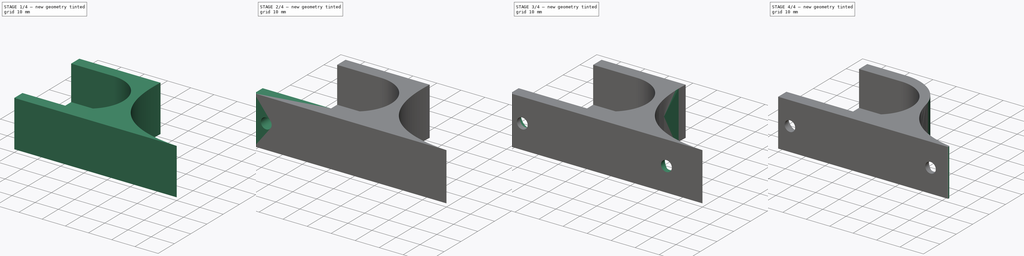
[diagram: build sequence overview — one tinted view per stage of 4, left to right]
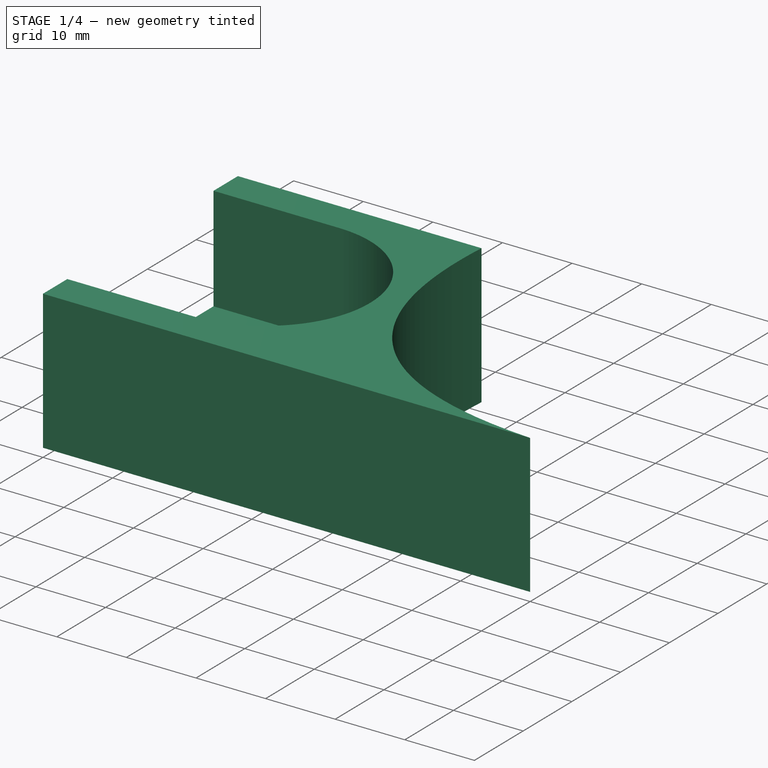
[diagram: stage 1 of 4 — iso view after this stage's code; geometry added in this stage tinted green]
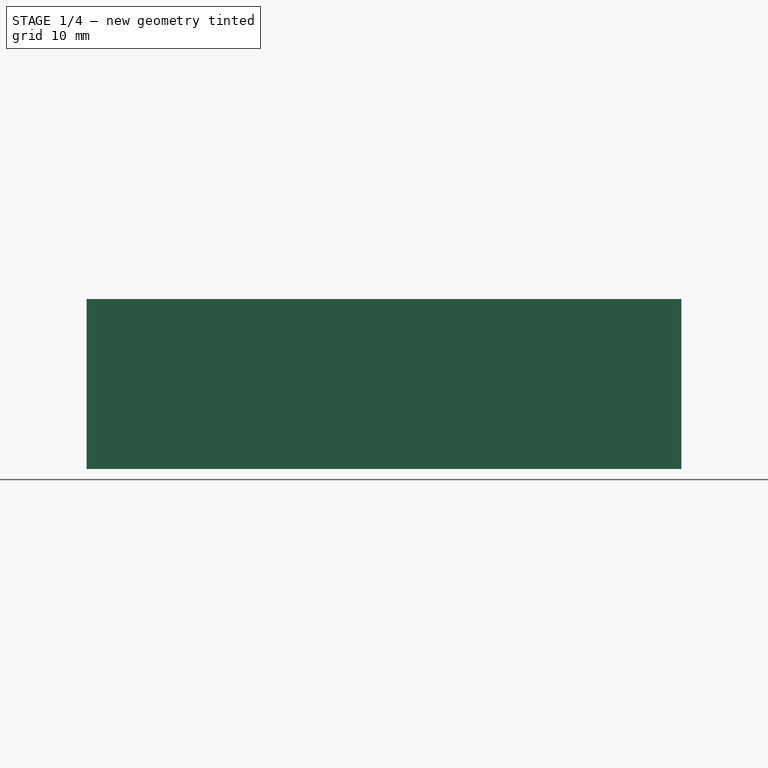
[diagram: stage 1 of 4 — front view after this stage's code; geometry added in this stage tinted green]
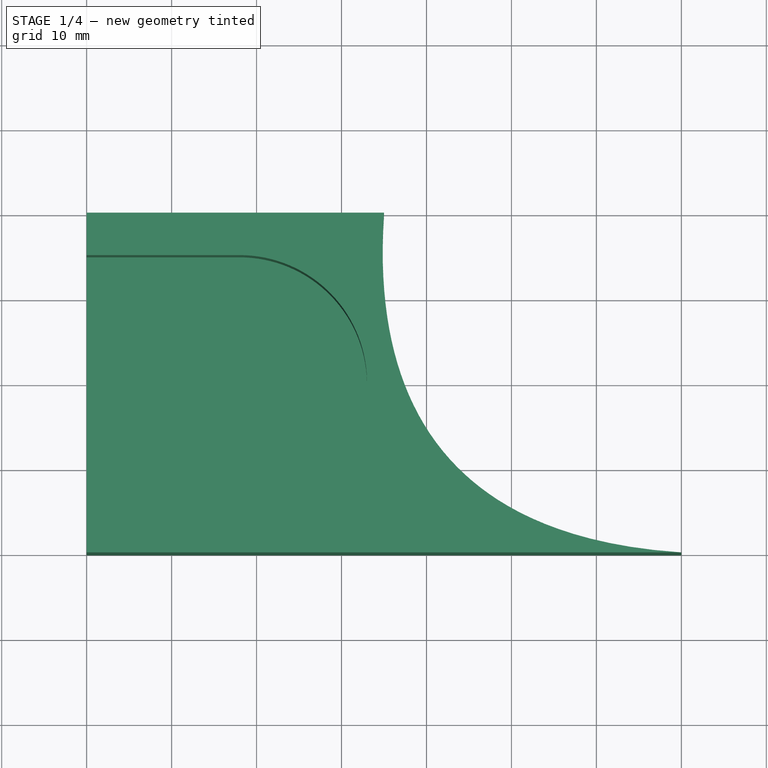
[diagram: stage 1 of 4 — top view after this stage's code; geometry added in this stage tinted green]
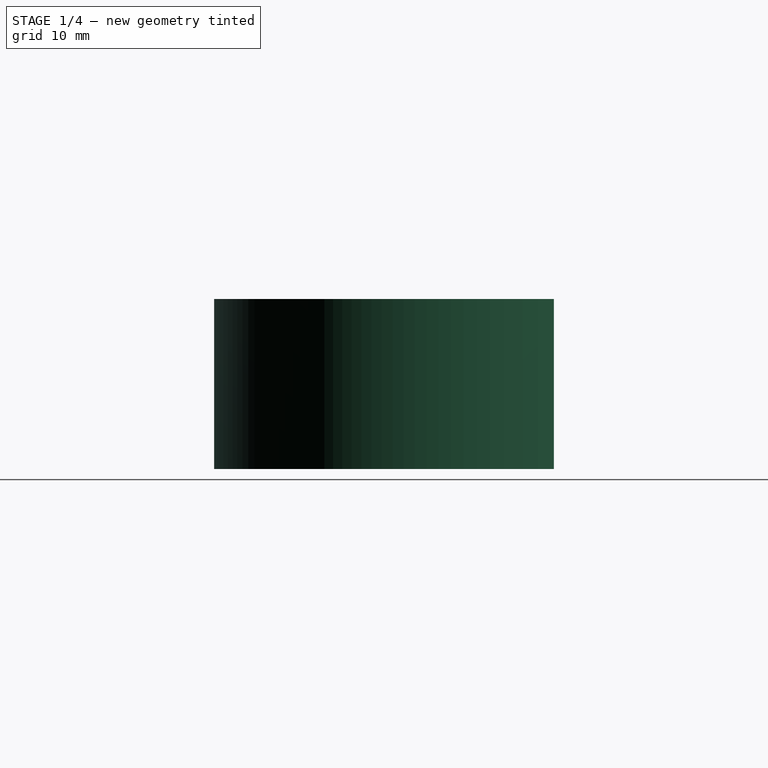
[diagram: stage 1 of 4 — right view after this stage's code; geometry added in this stage tinted green]
FCSTD DOCUMENT  (FreeCAD 0.19R24267 +99 (Git))
Label: curtainFrame
License: All rights reserved
LicenseURL: http://en.wikipedia.org/wiki/All_rights_reserved
objects: Sketcher::SketchObject×2, PartDesign::SubtractiveCylinder×2, PartDesign::LinearPattern×2, PartDesign::Fillet×2, PartDesign::Pad×1, PartDesign::Pocket×1, PartDesign::AdditiveBox×1, PartDesign::Line×1, PartDesign::Body×1
note: 20 computed .brp shape members not serialized (recipe doc carries the construction recipe); baked Part::Feature solids carry a one-line shape summary decoded from their .brp

FEATURE [Sketcher::SketchObject] Sketch
  FullyConstrained = true
  MapMode = 5
  Support = -> [XY_Plane]
  expr: Constraints[17] = .Constraints.width / 2
  sketch-geometry (7):
    g0: LineSegment StartX=0 StartY=0 StartZ=0 EndX=70 EndY=0 EndZ=0
    g1: LineSegment StartX=0 StartY=0 StartZ=0 EndX=0 EndY=40 EndZ=0
    g2: LineSegment StartX=0 StartY=40 StartZ=0 EndX=35 EndY=40 EndZ=0
    g3: LineSegment StartX=35 StartY=40 StartZ=0 EndX=70 EndY=0 EndZ=0
    g4: ArcOfParabola CenterX=42.5 CenterY=11.25 CenterZ=0 NormalX=0 NormalY=0 NormalZ=1 Focal=13.2877 AngleXU=0.71883 StartAngle=-26.5754 EndAngle=26.5754
    g5: GeomPoint X=52.5 Y=20 Z=0
    g6: LineSegment StartX=42.5 StartY=11.25 StartZ=0 EndX=52.5 EndY=20 EndZ=0
  constraints (18):
    c: Coincident(g0,g-1)
    c: PointOnObject(g0,g-1)
    c: Coincident(g1,g0)
    c: PointOnObject(g1,g-2)
    c: Distance(g0) = 70  'length'
    c: Coincident(g2,g1)
    c: Horizontal(g2)
    c: Coincident(g3,g2)
    c: Coincident(g3,g0)
    c: Distance(g1) = 40  'width'
    c: Distance(g2) = 35
    c: InternalAlignment(g5,g4)
    c: Coincident(g5,g6)
    c: Coincident(g4,g6)
    c: PointOnObject(g5,g3)
    c: Coincident(g4,g2)
    c: Coincident(g4,g0)
    c: Distance(g5,g0) = 20
FEATURE [PartDesign::Pad] Pad
  Direction = (1,1,1)
  Length = 20
  Length2 = 100
  Profile = -> Sketch
  Refine = true
  Type = 0
FEATURE [Sketcher::SketchObject] Sketch001
  FullyConstrained = true
  MapMode = 5
  Placement = pos=(0,0,20) rot=(0,0,1;0rad)
  Support = -> [Pad]
  expr: Constraints[12] = .Constraints.tubeDiameter / 2 + 3mm
  sketch-geometry (5):
    g0: LineSegment StartX=0 StartY=0 StartZ=0 EndX=0 EndY=5 EndZ=0
    g1: LineSegment StartX=0 StartY=5 StartZ=0 EndX=18 EndY=5 EndZ=0
    g2: LineSegment StartX=18 StartY=35 StartZ=0 EndX=0 EndY=35 EndZ=0
    g3: LineSegment StartX=0 StartY=35 StartZ=0 EndX=0 EndY=5 EndZ=0
    g4: ArcOfCircle CenterX=18 CenterY=20 CenterZ=0 NormalX=0 NormalY=0 NormalZ=1 AngleXU=0 Radius=15 StartAngle=4.71239 EndAngle=7.85398
  constraints (13):
    c: Coincident(g0,g-1)
    c: PointOnObject(g0,g-2)
    c: Distance(g0) = 5  'wall'
    c: Coincident(g2,g3)
    c: Coincident(g3,g1)
    c: Horizontal(g1)
    c: Horizontal(g2)
    c: Vertical(g3)
    c: Coincident(g1,g0)
    c: Distance(g3) = 30  'tubeDiameter'
    c: Tangent(g4,g1) = -1.5708
    c: Tangent(g2,g4) = -1.5708
    c: Distance(g2) = 18
FEATURE [PartDesign::Pocket] Pocket
  BaseFeature = -> Pad
  Length = 15
  Length2 = 100
  Profile = -> Sketch001
  Refine = true
  Type = 0
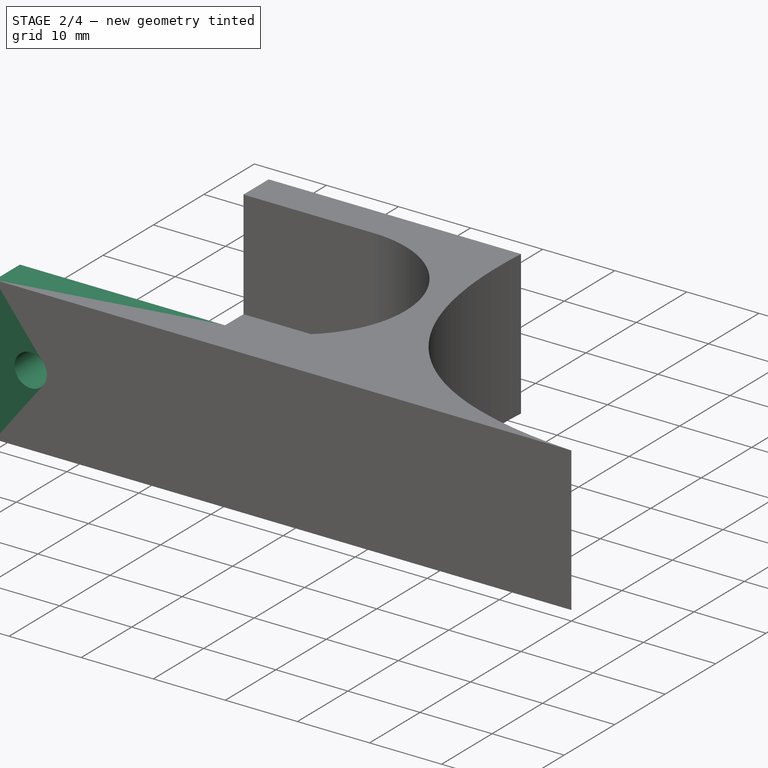
[diagram: stage 2 of 4 — iso view after this stage's code; geometry added in this stage tinted green]
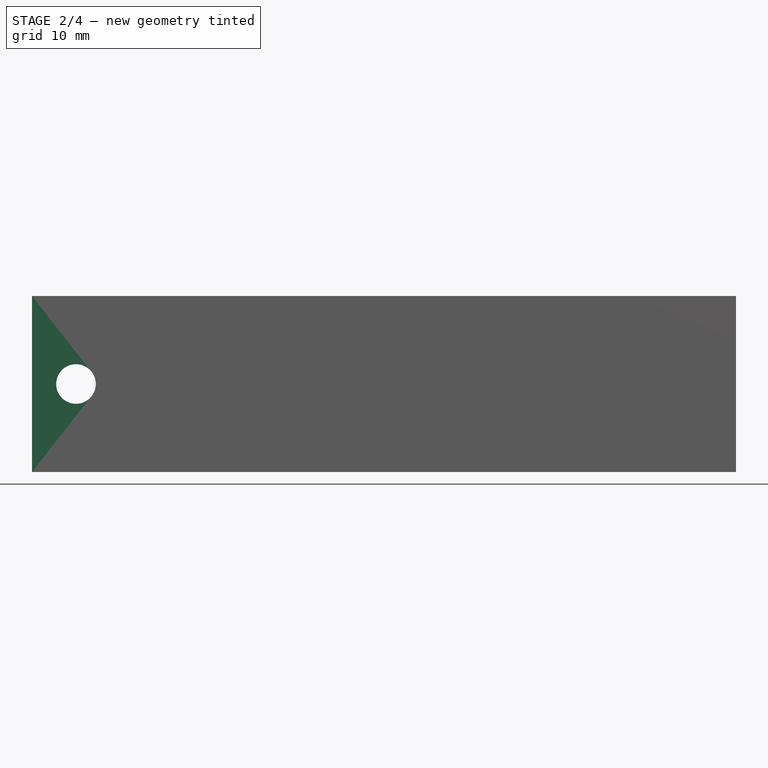
[diagram: stage 2 of 4 — front view after this stage's code; geometry added in this stage tinted green]
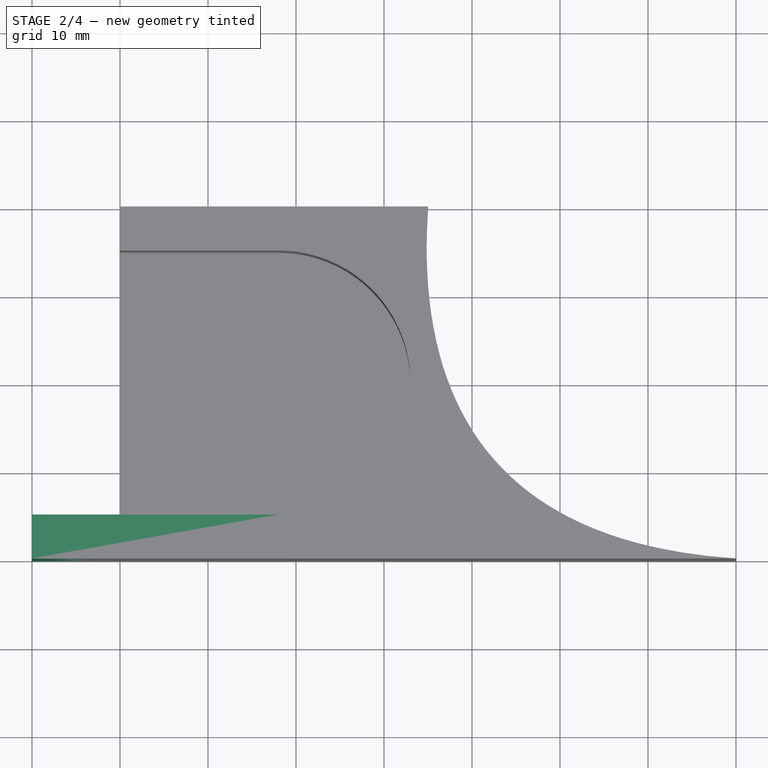
[diagram: stage 2 of 4 — top view after this stage's code; geometry added in this stage tinted green]
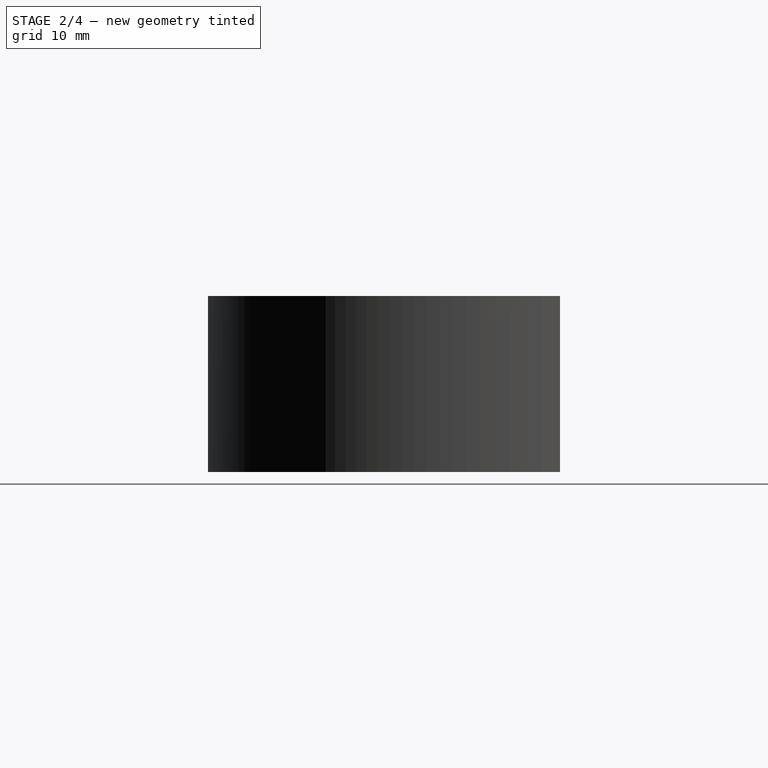
[diagram: stage 2 of 4 — right view after this stage's code; geometry added in this stage tinted green]
FEATURE [PartDesign::AdditiveBox] Box
  AttacherType = Attacher::AttachEngine3D
  AttachmentOffset = pos=(0,0,-20) rot=(0,0,1;0rad)
  BaseFeature = -> Pocket
  Height = 20
  Length = 10
  MapMode = 7
  Placement = pos=(0,0,20) rot=(0,1,0;3.14159rad)
  Refine = true
  Support = -> [Pocket]
  Width = 5
  expr: Width = Sketch001.Constraints.wall
  expr: .AttachmentOffset.Base.z = -Height
  expr: Height = Pad.Length
FEATURE [PartDesign::SubtractiveCylinder] Cylinder
  Angle = 360
  AttacherType = Attacher::AttachEngine3D
  AttachmentOffset = pos=(5,10,-5) rot=(0,0,1;0rad)
  BaseFeature = -> Box
  Height = 5
  MapMode = 7
  Placement = pos=(-5,5,10) rot=(1,0,0;1.5708rad)
  Radius = 2.25
  Refine = true
  Support = -> [Box]
  expr: .AttachmentOffset.Base.x = Box.Length / 2
  expr: .AttachmentOffset.Base.y = Pad.Length / 2
  expr: .AttachmentOffset.Base.z = -Height
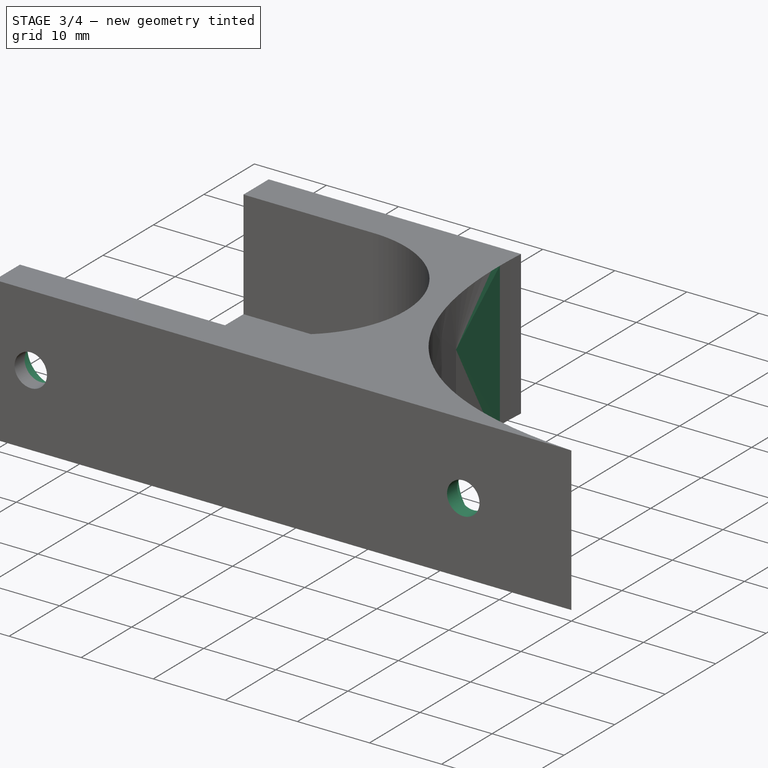
[diagram: stage 3 of 4 — iso view after this stage's code; geometry added in this stage tinted green]
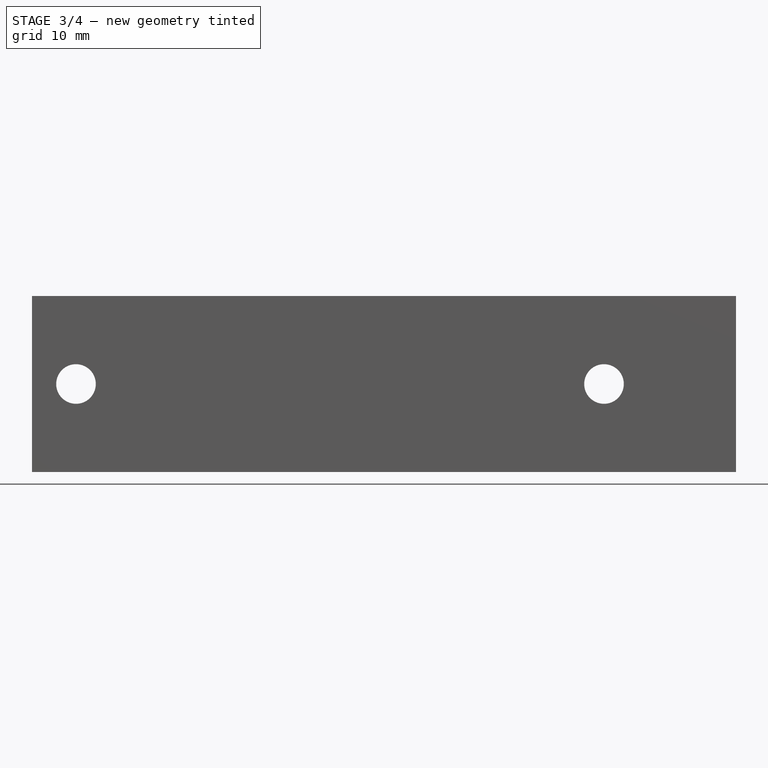
[diagram: stage 3 of 4 — front view after this stage's code; geometry added in this stage tinted green]
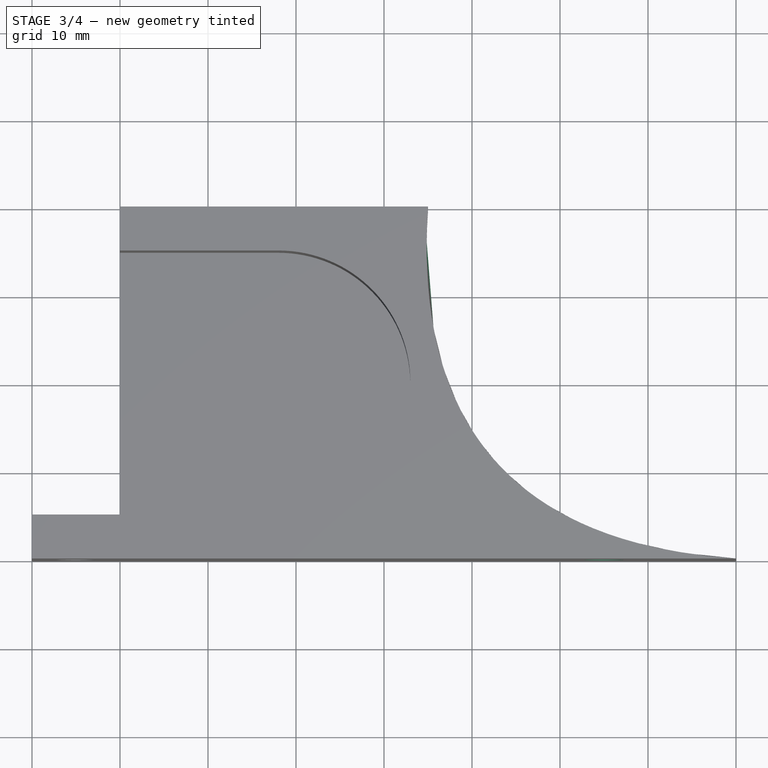
[diagram: stage 3 of 4 — top view after this stage's code; geometry added in this stage tinted green]
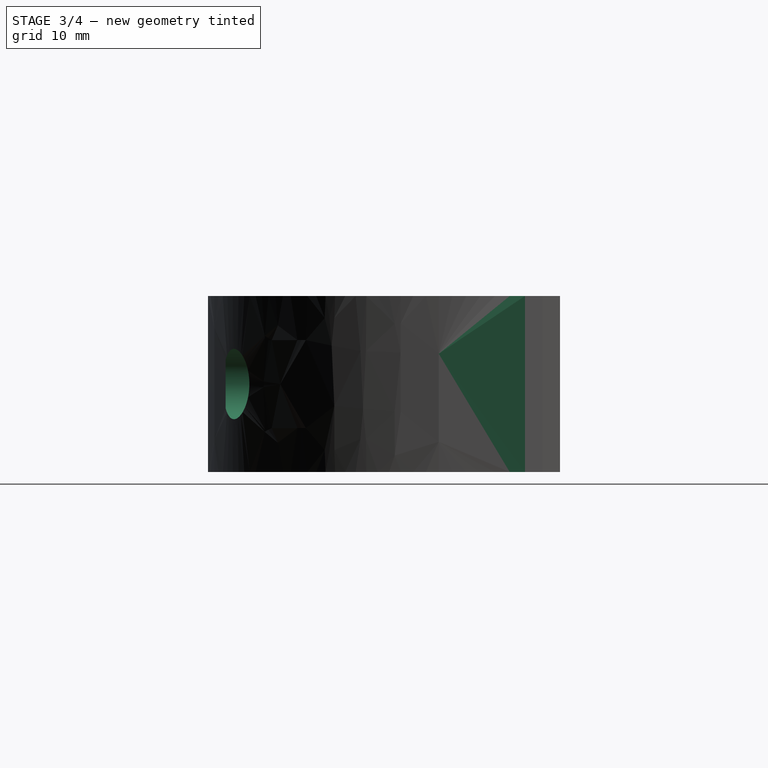
[diagram: stage 3 of 4 — right view after this stage's code; geometry added in this stage tinted green]
FEATURE [PartDesign::Line] DatumLine
  AttacherType = Attacher::AttachEngineLine
  AttachmentOffset = pos=(0,10,0) rot=(0,0,1;0rad)
  Length = 20
  MapMode = 16
  Placement = pos=(0,0,10) rot=(0.57735,0.57735,-0.57735;4.18879rad)
  ResizeMode = 0
  Support = -> [Box]
  expr: .AttachmentOffset.Base.y = Pad.Length / 2
FEATURE [PartDesign::LinearPattern] LinearPattern001
  BaseFeature = -> Cylinder
  Direction = -> DatumLine
  Length = 60
  Occurrences = 2
  Originals = -> [Cylinder]
  Placement = pos=(-5,5,10) rot=(1,0,0;1.5708rad)
  Refine = true
  Reversed = true
FEATURE [PartDesign::SubtractiveCylinder] Cylinder001
  Angle = 360
  AttacherType = Attacher::AttachEngine3D
  AttachmentOffset = pos=(5,10,-7) rot=(0,0,1;0rad)
  BaseFeature = -> LinearPattern001
  Height = 5
  MapMode = 7
  Placement = pos=(-5,7,10) rot=(1,0,0;1.5708rad)
  Radius = 4
  Refine = true
  Support = -> [Cylinder]
  expr: .AttachmentOffset.Base.x = Box.Length / 2
  expr: .AttachmentOffset.Base.y = Pad.Length / 2
  expr: .AttachmentOffset.Base.z = -Height - 2mm
FEATURE [PartDesign::LinearPattern] LinearPattern
  BaseFeature = -> Cylinder001
  Direction = -> DatumLine
  Length = 60
  Occurrences = 2
  Originals = -> [Cylinder001]
  Placement = pos=(-5,7,10) rot=(1,0,0;1.5708rad)
  Refine = true
  Reversed = true
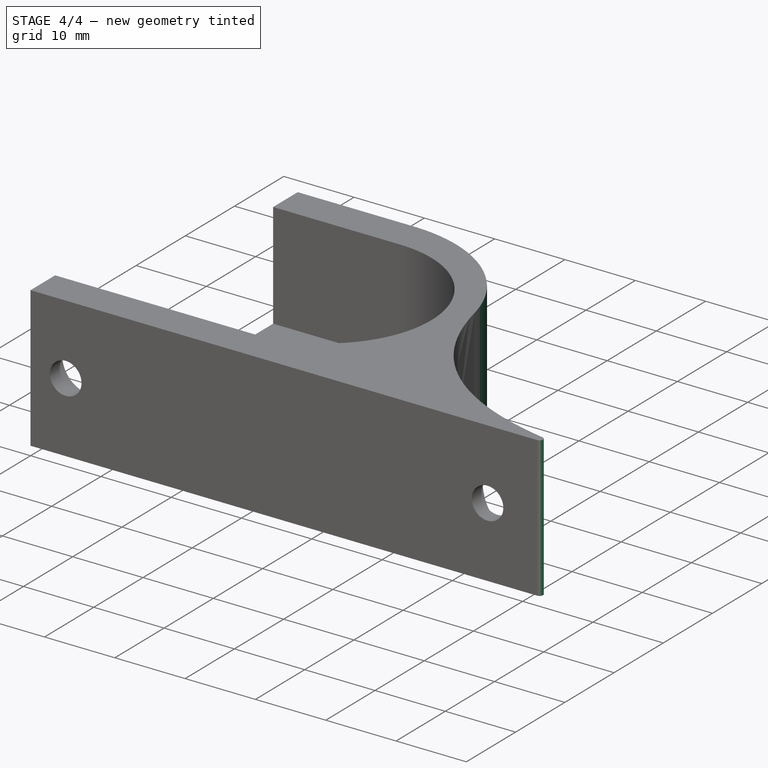
[diagram: stage 4 of 4 — iso view after this stage's code; geometry added in this stage tinted green]
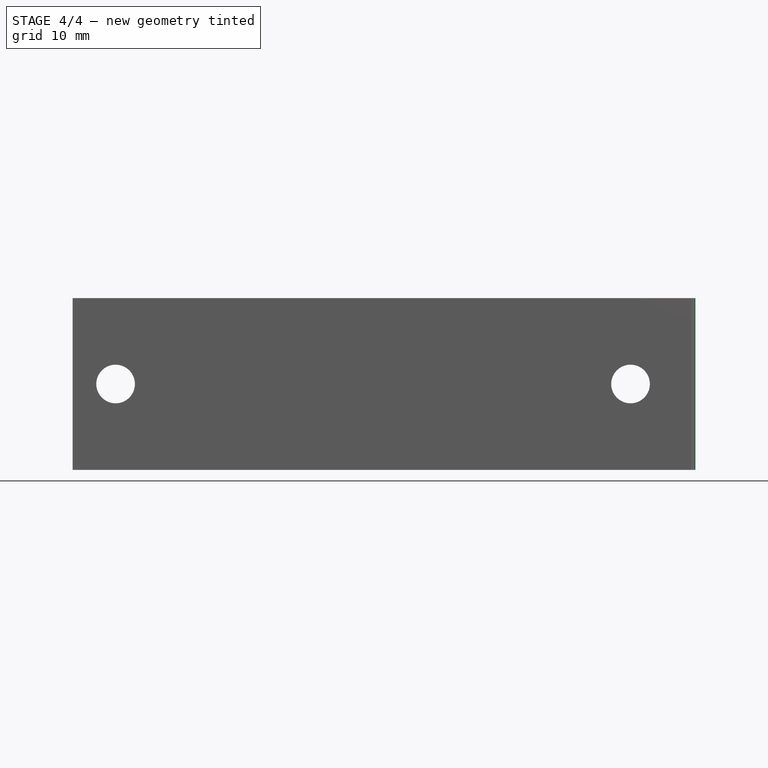
[diagram: stage 4 of 4 — front view after this stage's code; geometry added in this stage tinted green]
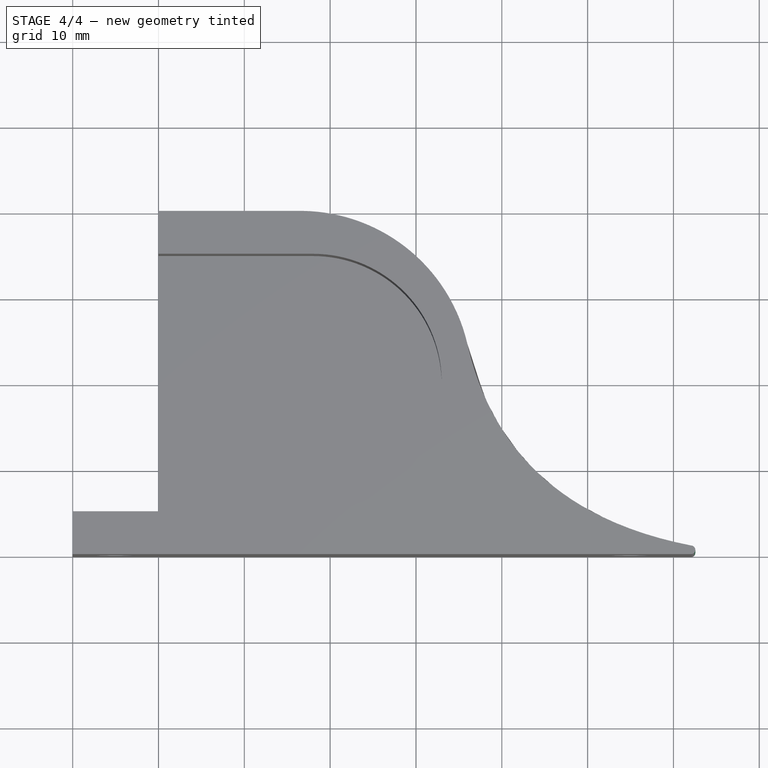
[diagram: stage 4 of 4 — top view after this stage's code; geometry added in this stage tinted green]
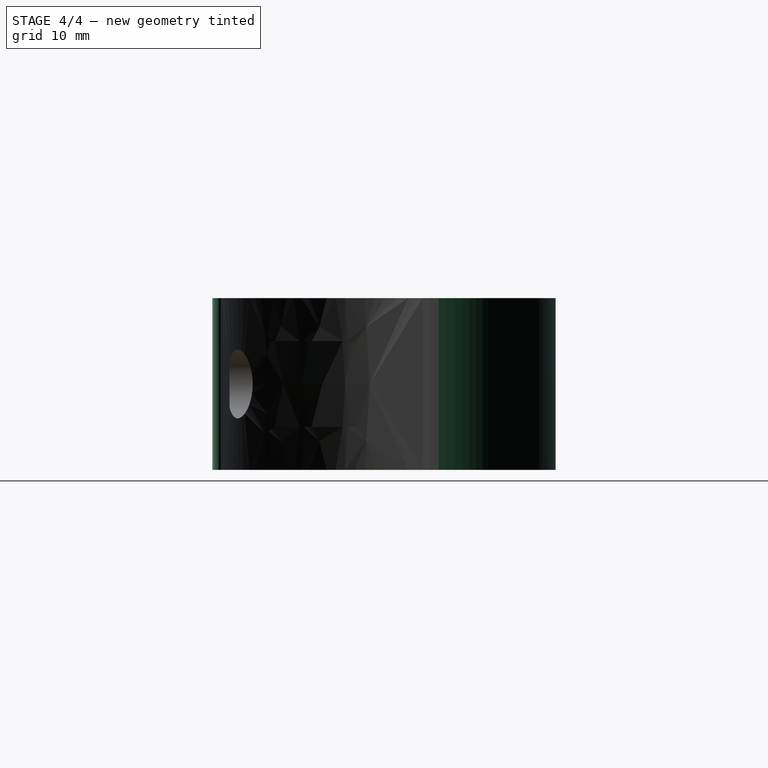
[diagram: stage 4 of 4 — right view after this stage's code; geometry added in this stage tinted green]
FEATURE [PartDesign::Fillet] Fillet
  Base = -> LinearPattern [Edge32]
  BaseFeature = -> LinearPattern
  Placement = pos=(-5,7,10) rot=(1,0,0;1.5708rad)
  Radius = 20
  Refine = true
  SupportTransform = false
FEATURE [PartDesign::Fillet] Fillet001
  Base = -> Fillet [Edge12]
  BaseFeature = -> Fillet
  Placement = pos=(-5,7,10) rot=(1,0,0;1.5708rad)
  Radius = 0.5
  Refine = true
  SupportTransform = false
FEATURE [PartDesign::Body] Body
  Group = -> [Sketch,Pad,Sketch001,Pocket,Box,DatumLine,Cylinder,LinearPattern001,Cylinder001,LinearPattern,Fillet,Fillet001]
  Origin = -> Origin
  Tip = -> Fillet001
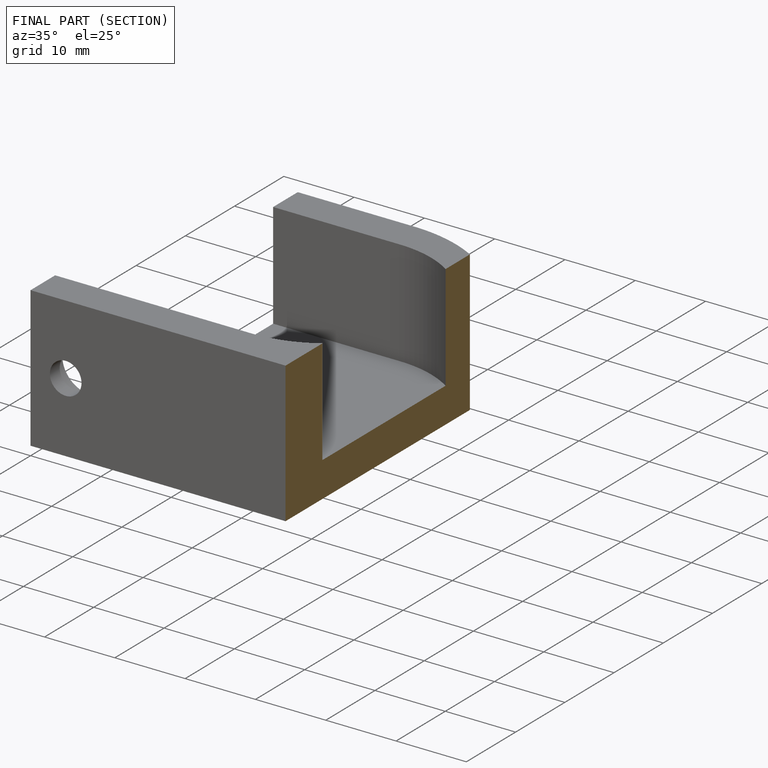
[diagram: finished part — half-section view (interior)]
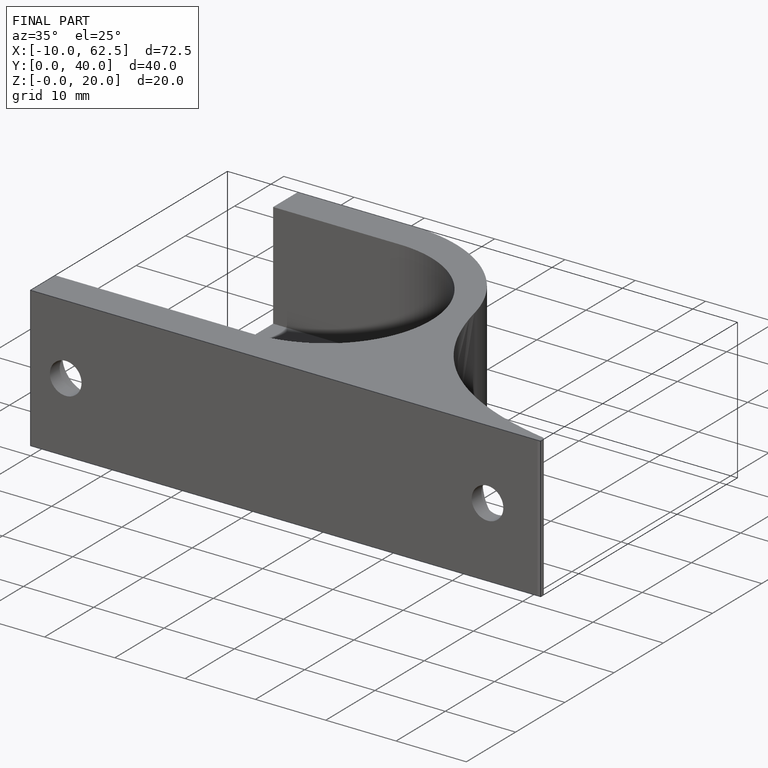
[diagram: finished part — iso view with bounding-box wireframe]
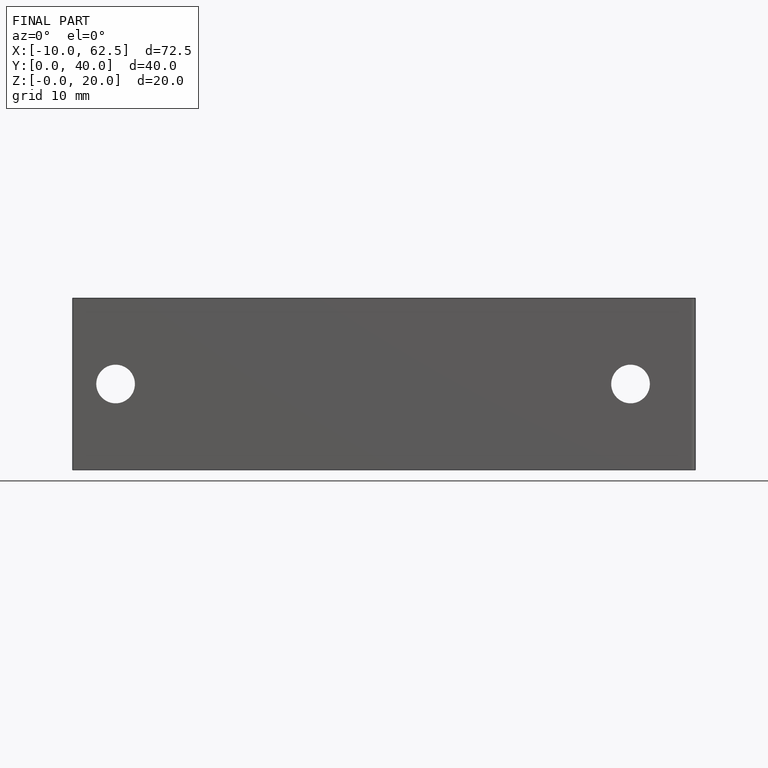
[diagram: finished part — front view with bounding-box wireframe]
